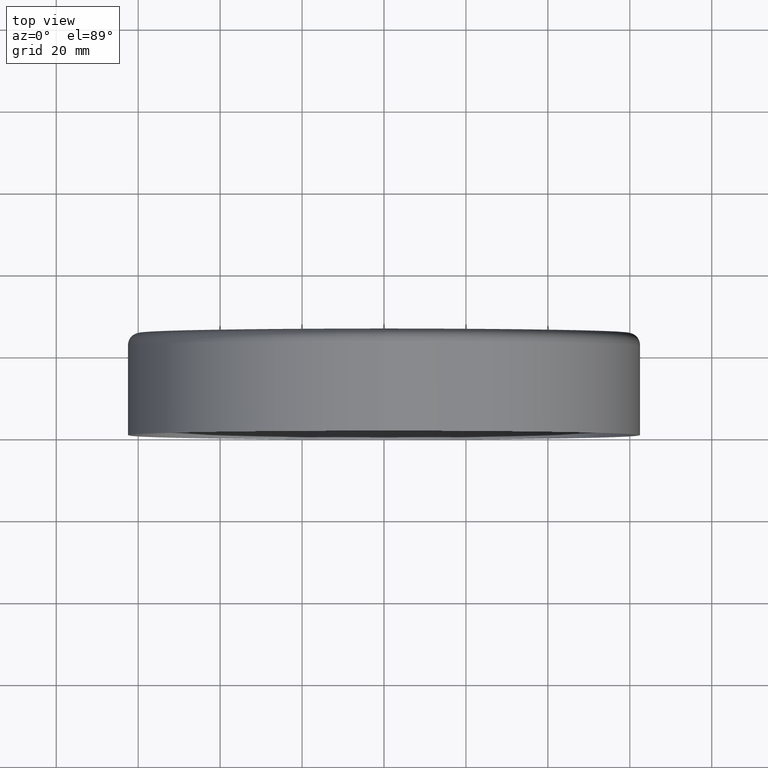
[diagram: clean part render]
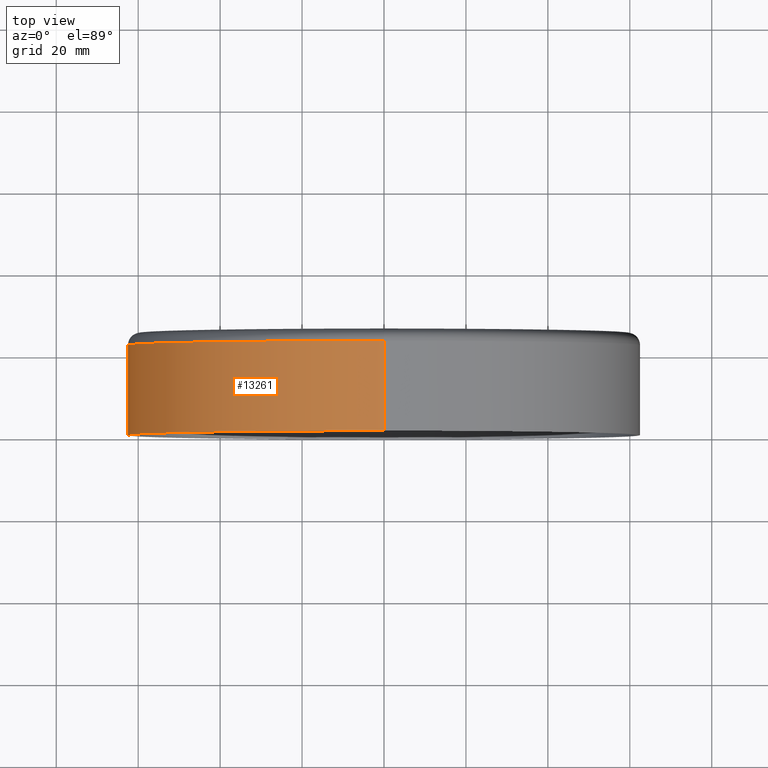
[diagram: same view with one face highlighted and labeled with its STEP entity id]
A machine part, top view. The second image highlights one B-rep face of the part: STEP entity #13261.
In plain terms, the highlighted cylindrical surface (partial cylindrical patch) has radius 62.5 mm, axis along (-0, -1, -0).
Its self-contained STEP definition (entity closure, byte-faithful):
#340 = EDGE_LOOP ( 'NONE', ( #15321, #1073, #14993, #10048 ) ) ;
#1073 = ORIENTED_EDGE ( 'NONE', *, *, #8014, .T. ) ;
#1296 = DIRECTION ( 'NONE',  ( -0.000000000000000000, -1.000000000000000000, -0.000000000000000000 ) ) ;
#1396 = CARTESIAN_POINT ( 'NONE',  ( 0.000000000000000000, 0.000000000000000000, -62.50000000000000000 ) ) ;
#1485 = DIRECTION ( 'NONE',  ( -0.000000000000000000, -1.000000000000000000, -0.000000000000000000 ) ) ;
#1829 = VERTEX_POINT ( 'NONE', #13854 ) ;
#1939 = CARTESIAN_POINT ( 'NONE',  ( 7.654042494670957804E-15, 0.000000000000000000, 62.50000000000000000 ) ) ;
#2371 = CARTESIAN_POINT ( 'NONE',  ( 0.000000000000000000, 0.000000000000000000, -62.50000000000000000 ) ) ;
#2733 = VERTEX_POINT ( 'NONE', #2371 ) ;
#3779 = EDGE_CURVE ( 'NONE', #9793, #2733, #12518, .T. ) ;
#4265 = CARTESIAN_POINT ( 'NONE',  ( 0.000000000000000000, 22.00000000000000355, 0.000000000000000000 ) ) ;
#4533 = EDGE_CURVE ( 'NONE', #16442, #1829, #4687, .T. ) ;
#4687 = LINE ( 'NONE', #1939, #4878 ) ;
#4878 = VECTOR ( 'NONE', #8495, 1000.000000000000000 ) ;
#5380 = AXIS2_PLACEMENT_3D ( 'NONE', #4265, #1485, #6744 ) ;
#5976 = AXIS2_PLACEMENT_3D ( 'NONE', #13130, #9444, #10755 ) ;
#6744 = DIRECTION ( 'NONE',  ( 0.000000000000000000, 0.000000000000000000, -1.000000000000000000 ) ) ;
#7668 = EDGE_CURVE ( 'NONE', #1829, #2733, #10050, .T. ) ;
#7838 = CIRCLE ( 'NONE', #5380, 62.50000000000000000 ) ;
#8014 = EDGE_CURVE ( 'NONE', #16442, #9793, #7838, .T. ) ;
#8495 = DIRECTION ( 'NONE',  ( -0.000000000000000000, -1.000000000000000000, -0.000000000000000000 ) ) ;
#9444 = DIRECTION ( 'NONE',  ( -0.000000000000000000, -1.000000000000000000, -0.000000000000000000 ) ) ;
#9512 = CYLINDRICAL_SURFACE ( 'NONE', #5976, 62.50000000000000000 ) ;
#9793 = VERTEX_POINT ( 'NONE', #16382 ) ;
#10014 = AXIS2_PLACEMENT_3D ( 'NONE', #15382, #1296, #14122 ) ;
#10048 = ORIENTED_EDGE ( 'NONE', *, *, #7668, .F. ) ;
#10050 = CIRCLE ( 'NONE', #10014, 62.50000000000000000 ) ;
#10755 = DIRECTION ( 'NONE',  ( 0.000000000000000000, 0.000000000000000000, -1.000000000000000000 ) ) ;
#12518 = LINE ( 'NONE', #1396, #15317 ) ;
#13130 = CARTESIAN_POINT ( 'NONE',  ( 0.000000000000000000, 0.000000000000000000, 0.000000000000000000 ) ) ;
#13261 = ADVANCED_FACE ( 'NONE', ( #15319 ), #9512, .T. ) ;
#13854 = CARTESIAN_POINT ( 'NONE',  ( 7.654042494670957804E-15, 0.000000000000000000, 62.50000000000000000 ) ) ;
#13866 = CARTESIAN_POINT ( 'NONE',  ( 7.654042494670957804E-15, 22.00000000000000355, 62.50000000000000000 ) ) ;
#14122 = DIRECTION ( 'NONE',  ( 0.000000000000000000, 0.000000000000000000, -1.000000000000000000 ) ) ;
#14298 = DIRECTION ( 'NONE',  ( -0.000000000000000000, -1.000000000000000000, -0.000000000000000000 ) ) ;
#14993 = ORIENTED_EDGE ( 'NONE', *, *, #3779, .T. ) ;
#15317 = VECTOR ( 'NONE', #14298, 1000.000000000000000 ) ;
#15319 = FACE_OUTER_BOUND ( 'NONE', #340, .T. ) ;
#15321 = ORIENTED_EDGE ( 'NONE', *, *, #4533, .F. ) ;
#15382 = CARTESIAN_POINT ( 'NONE',  ( 0.000000000000000000, 0.000000000000000000, 0.000000000000000000 ) ) ;
#16382 = CARTESIAN_POINT ( 'NONE',  ( 0.000000000000000000, 22.00000000000000355, -62.50000000000000000 ) ) ;
#16442 = VERTEX_POINT ( 'NONE', #13866 ) ;